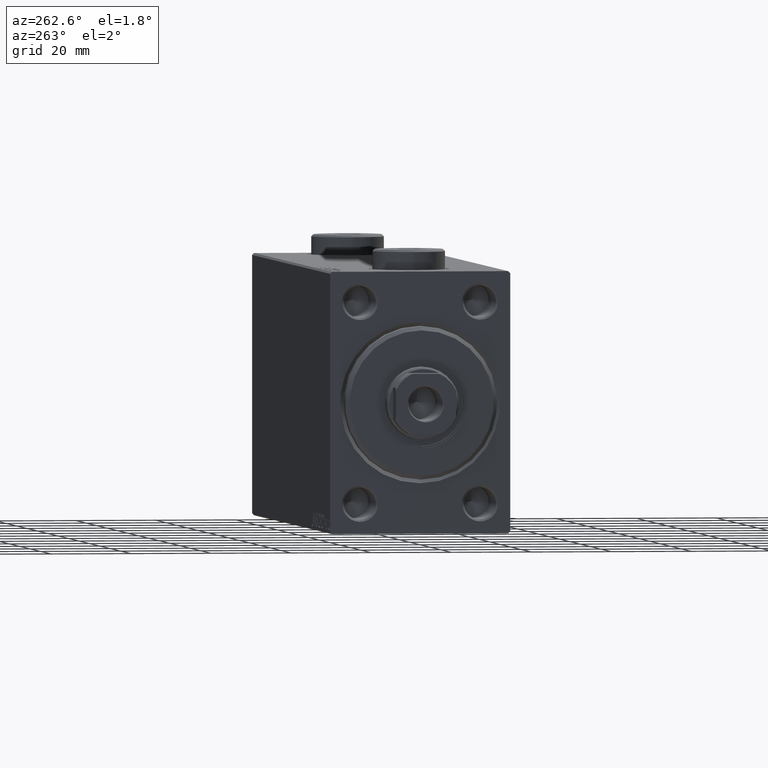
[diagram: clean part render]
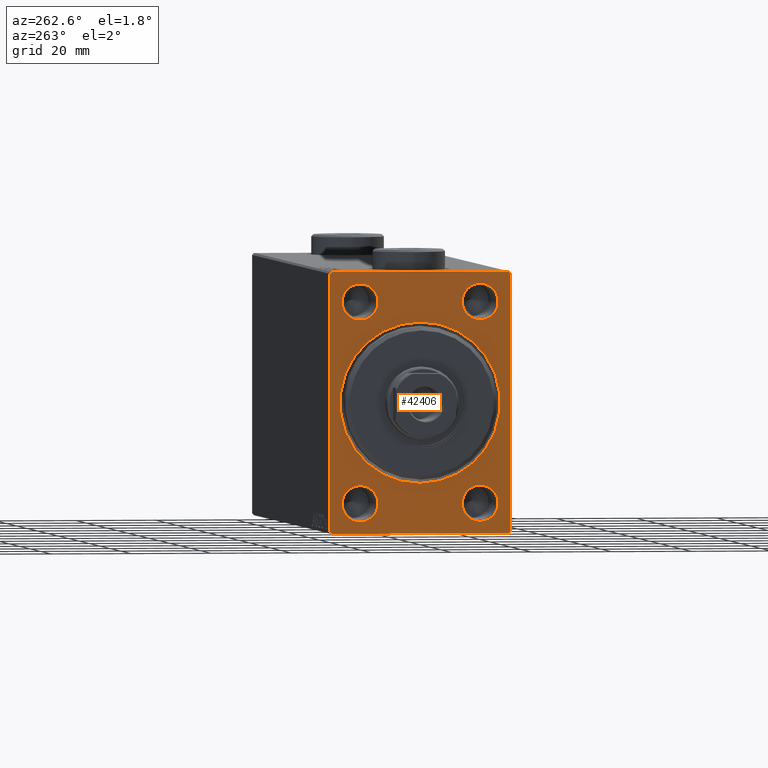
[diagram: same view with one face highlighted and labeled with its STEP entity id]
A machine part, auxiliary view. The second image highlights one B-rep face of the part: STEP entity #42406.
In plain terms, the highlighted planar face has unit normal (1, 0, 0).
Its self-contained STEP definition (entity closure, byte-faithful):
#564 = LINE ( 'NONE', #21525, #2201 ) ;
#724 = ORIENTED_EDGE ( 'NONE', *, *, #42964, .F. ) ;
#752 = CIRCLE ( 'NONE', #31677, 4.499999999999990230 ) ;
#852 = CARTESIAN_POINT ( 'NONE',  ( 0.000000000000000000, 15.00000000000000178, -20.50000000000001066 ) ) ;
#1004 = AXIS2_PLACEMENT_3D ( 'NONE', #36341, #29199, #3851 ) ;
#1363 = CARTESIAN_POINT ( 'NONE',  ( 0.000000000000000000, 15.00000000000000178, 20.50000000000001066 ) ) ;
#1569 = CARTESIAN_POINT ( 'NONE',  ( 0.000000000000000000, 15.00000000000000178, -25.00000000000000000 ) ) ;
#1570 = CIRCLE ( 'NONE', #27319, 4.499999999999990230 ) ;
#2112 = FACE_BOUND ( 'NONE', #7079, .T. ) ;
#2201 = VECTOR ( 'NONE', #7721, 1000.000000000000000 ) ;
#2381 = LINE ( 'NONE', #38084, #19921 ) ;
#2592 = DIRECTION ( 'NONE',  ( 0.000000000000000000, 0.000000000000000000, -1.000000000000000000 ) ) ;
#2710 = DIRECTION ( 'NONE',  ( 0.000000000000000000, 0.000000000000000000, -1.000000000000000000 ) ) ;
#2808 = VECTOR ( 'NONE', #32298, 1000.000000000000000 ) ;
#2852 = CARTESIAN_POINT ( 'NONE',  ( 0.000000000000000000, 22.50000000000000000, 31.99999999999999289 ) ) ;
#3045 = VERTEX_POINT ( 'NONE', #18596 ) ;
#3439 = ORIENTED_EDGE ( 'NONE', *, *, #26887, .F. ) ;
#3604 = CARTESIAN_POINT ( 'NONE',  ( 0.000000000000000000, 22.00000000000000000, 32.49999999999999289 ) ) ;
#3676 = VECTOR ( 'NONE', #20674, 1000.000000000000000 ) ;
#3779 = CARTESIAN_POINT ( 'NONE',  ( 0.000000000000000000, -15.00000000000000000, -25.00000000000000000 ) ) ;
#3851 = DIRECTION ( 'NONE',  ( 0.000000000000000000, 0.000000000000000000, -1.000000000000000000 ) ) ;
#4561 = DIRECTION ( 'NONE',  ( 1.000000000000000000, 0.000000000000000000, 0.000000000000000000 ) ) ;
#4787 = EDGE_CURVE ( 'NONE', #21800, #34271, #42221, .T. ) ;
#5147 = ORIENTED_EDGE ( 'NONE', *, *, #42067, .T. ) ;
#5176 = LINE ( 'NONE', #26611, #33801 ) ;
#5348 = CARTESIAN_POINT ( 'NONE',  ( 0.000000000000000000, 0.000000000000000000, 0.000000000000000000 ) ) ;
#5492 = EDGE_LOOP ( 'NONE', ( #40140, #26974 ) ) ;
#5968 = CIRCLE ( 'NONE', #8186, 4.499999999999990230 ) ;
#6025 = FACE_BOUND ( 'NONE', #10522, .T. ) ;
#6052 = CARTESIAN_POINT ( 'NONE',  ( 0.000000000000000000, -15.00000000000000000, 25.00000000000000000 ) ) ;
#6531 = EDGE_CURVE ( 'NONE', #3045, #17086, #5176, .T. ) ;
#6592 = AXIS2_PLACEMENT_3D ( 'NONE', #23547, #17075, #44761 ) ;
#7040 = CARTESIAN_POINT ( 'NONE',  ( 0.000000000000000000, 0.000000000000000000, 19.99999999999998934 ) ) ;
#7079 = EDGE_LOOP ( 'NONE', ( #20528, #40146 ) ) ;
#7173 = VERTEX_POINT ( 'NONE', #15597 ) ;
#7534 = VERTEX_POINT ( 'NONE', #2852 ) ;
#7721 = DIRECTION ( 'NONE',  ( 0.000000000000000000, -1.000000000000000000, -1.541976423090495633E-16 ) ) ;
#7948 = EDGE_CURVE ( 'NONE', #34841, #34517, #29429, .T. ) ;
#8122 = CIRCLE ( 'NONE', #33867, 4.499999999999990230 ) ;
#8186 = AXIS2_PLACEMENT_3D ( 'NONE', #3779, #21514, #18283 ) ;
#8277 = ORIENTED_EDGE ( 'NONE', *, *, #28002, .T. ) ;
#8706 = CARTESIAN_POINT ( 'NONE',  ( 0.000000000000000000, -21.99999999999997868, 32.49999999999998579 ) ) ;
#8848 = CARTESIAN_POINT ( 'NONE',  ( 0.000000000000000000, -21.99999999999999289, -32.50000000000000711 ) ) ;
#9323 = EDGE_CURVE ( 'NONE', #37467, #43238, #8122, .T. ) ;
#9422 = LINE ( 'NONE', #10550, #3676 ) ;
#9489 = DIRECTION ( 'NONE',  ( 0.000000000000000000, 0.000000000000000000, -1.000000000000000000 ) ) ;
#9646 = ORIENTED_EDGE ( 'NONE', *, *, #6531, .T. ) ;
#10415 = VECTOR ( 'NONE', #10932, 1000.000000000000000 ) ;
#10522 = EDGE_LOOP ( 'NONE', ( #24397, #44091 ) ) ;
#10550 = CARTESIAN_POINT ( 'NONE',  ( 0.000000000000000000, -22.49999999999999289, 32.49999999999998579 ) ) ;
#10685 = CARTESIAN_POINT ( 'NONE',  ( 0.000000000000000000, 0.000000000000000000, 0.000000000000000000 ) ) ;
#10932 = DIRECTION ( 'NONE',  ( 0.000000000000000000, -1.067522139062650425E-16, 1.000000000000000000 ) ) ;
#11456 = EDGE_CURVE ( 'NONE', #34517, #34841, #5968, .T. ) ;
#11838 = EDGE_CURVE ( 'NONE', #15157, #42181, #1570, .T. ) ;
#11860 = DIRECTION ( 'NONE',  ( -0.000000000000000000, 0.7071067811865474617, 0.7071067811865474617 ) ) ;
#11952 = VERTEX_POINT ( 'NONE', #852 ) ;
#12128 = AXIS2_PLACEMENT_3D ( 'NONE', #10685, #32122, #14799 ) ;
#12402 = EDGE_CURVE ( 'NONE', #3045, #7534, #39521, .T. ) ;
#12689 = ORIENTED_EDGE ( 'NONE', *, *, #4787, .T. ) ;
#13071 = DIRECTION ( 'NONE',  ( 1.000000000000000000, 0.000000000000000000, 0.000000000000000000 ) ) ;
#13743 = CARTESIAN_POINT ( 'NONE',  ( 0.000000000000000000, 15.00000000000000178, 25.00000000000000000 ) ) ;
#14799 = DIRECTION ( 'NONE',  ( 0.000000000000000000, 0.000000000000000000, -1.000000000000000000 ) ) ;
#15065 = CARTESIAN_POINT ( 'NONE',  ( 0.000000000000000000, -15.00000000000000000, -20.50000000000001066 ) ) ;
#15157 = VERTEX_POINT ( 'NONE', #1363 ) ;
#15520 = DIRECTION ( 'NONE',  ( 1.000000000000000000, 0.000000000000000000, 0.000000000000000000 ) ) ;
#15597 = CARTESIAN_POINT ( 'NONE',  ( 0.000000000000000000, 2.449293598294705330E-15, -19.99999999999998934 ) ) ;
#15699 = CARTESIAN_POINT ( 'NONE',  ( 0.000000000000000000, -15.00000000000000000, -29.49999999999999289 ) ) ;
#15930 = CARTESIAN_POINT ( 'NONE',  ( 0.000000000000000000, 15.00000000000000178, -29.49999999999999289 ) ) ;
#16338 = ORIENTED_EDGE ( 'NONE', *, *, #23203, .F. ) ;
#16420 = DIRECTION ( 'NONE',  ( -0.000000000000000000, 0.7071067811865474617, -0.7071067811865474617 ) ) ;
#16608 = DIRECTION ( 'NONE',  ( 1.000000000000000000, 0.000000000000000000, 0.000000000000000000 ) ) ;
#17075 = DIRECTION ( 'NONE',  ( 1.000000000000000000, 0.000000000000000000, 0.000000000000000000 ) ) ;
#17086 = VERTEX_POINT ( 'NONE', #26944 ) ;
#18283 = DIRECTION ( 'NONE',  ( 0.000000000000000000, 0.000000000000000000, -1.000000000000000000 ) ) ;
#18583 = CARTESIAN_POINT ( 'NONE',  ( 0.000000000000000000, -22.49999999999999289, -32.00000000000001421 ) ) ;
#18596 = CARTESIAN_POINT ( 'NONE',  ( 0.000000000000000000, 22.50000000000000711, -32.00000000000000711 ) ) ;
#18611 = DIRECTION ( 'NONE',  ( 0.000000000000000000, 0.000000000000000000, -1.000000000000000000 ) ) ;
#18739 = EDGE_LOOP ( 'NONE', ( #16338, #31756, #3439, #41763, #44929, #9646, #724, #12689 ) ) ;
#19393 = PLANE ( 'NONE',  #39315 ) ;
#19921 = VECTOR ( 'NONE', #16420, 1000.000000000000114 ) ;
#20066 = DIRECTION ( 'NONE',  ( 1.000000000000000000, 0.000000000000000000, 0.000000000000000000 ) ) ;
#20091 = DIRECTION ( 'NONE',  ( 1.000000000000000000, 0.000000000000000000, 0.000000000000000000 ) ) ;
#20514 = DIRECTION ( 'NONE',  ( 0.000000000000000000, 0.000000000000000000, -1.000000000000000000 ) ) ;
#20528 = ORIENTED_EDGE ( 'NONE', *, *, #11456, .T. ) ;
#20674 = DIRECTION ( 'NONE',  ( 0.000000000000000000, 0.000000000000000000, -1.000000000000000000 ) ) ;
#21070 = CARTESIAN_POINT ( 'NONE',  ( 0.000000000000000000, 22.50000000000000711, -32.50000000000000711 ) ) ;
#21514 = DIRECTION ( 'NONE',  ( 1.000000000000000000, 0.000000000000000000, 0.000000000000000000 ) ) ;
#21525 = CARTESIAN_POINT ( 'NONE',  ( 0.000000000000000000, 22.50000000000000000, 32.49999999999999289 ) ) ;
#21761 = DIRECTION ( 'NONE',  ( 1.000000000000000000, 0.000000000000000000, 0.000000000000000000 ) ) ;
#21800 = VERTEX_POINT ( 'NONE', #8848 ) ;
#22579 = EDGE_CURVE ( 'NONE', #42181, #15157, #24542, .T. ) ;
#23203 = EDGE_CURVE ( 'NONE', #24590, #34271, #9422, .T. ) ;
#23547 = CARTESIAN_POINT ( 'NONE',  ( 0.000000000000000000, -15.00000000000000000, -25.00000000000000000 ) ) ;
#23748 = EDGE_CURVE ( 'NONE', #34345, #7173, #30928, .T. ) ;
#24397 = ORIENTED_EDGE ( 'NONE', *, *, #22579, .T. ) ;
#24542 = CIRCLE ( 'NONE', #1004, 4.499999999999990230 ) ;
#24555 = AXIS2_PLACEMENT_3D ( 'NONE', #25682, #21761, #32842 ) ;
#24590 = VERTEX_POINT ( 'NONE', #39842 ) ;
#24591 = VECTOR ( 'NONE', #25931, 1000.000000000000000 ) ;
#24687 = CARTESIAN_POINT ( 'NONE',  ( 0.000000000000000000, -21.99999999999999289, -32.50000000000000711 ) ) ;
#25020 = AXIS2_PLACEMENT_3D ( 'NONE', #33065, #15520, #26154 ) ;
#25568 = ORIENTED_EDGE ( 'NONE', *, *, #44002, .T. ) ;
#25682 = CARTESIAN_POINT ( 'NONE',  ( 0.000000000000000000, 15.00000000000000178, -25.00000000000000000 ) ) ;
#25931 = DIRECTION ( 'NONE',  ( 0.000000000000000000, 1.000000000000000000, 0.000000000000000000 ) ) ;
#26154 = DIRECTION ( 'NONE',  ( 0.000000000000000000, 0.000000000000000000, -1.000000000000000000 ) ) ;
#26155 = EDGE_CURVE ( 'NONE', #41491, #7534, #2381, .T. ) ;
#26545 = FACE_OUTER_BOUND ( 'NONE', #18739, .T. ) ;
#26611 = CARTESIAN_POINT ( 'NONE',  ( 0.000000000000000000, 22.50000000000000711, -32.00000000000000711 ) ) ;
#26887 = EDGE_CURVE ( 'NONE', #41491, #36168, #564, .T. ) ;
#26944 = CARTESIAN_POINT ( 'NONE',  ( 0.000000000000000000, 21.99999999999999289, -32.50000000000000711 ) ) ;
#26974 = ORIENTED_EDGE ( 'NONE', *, *, #35620, .T. ) ;
#27319 = AXIS2_PLACEMENT_3D ( 'NONE', #13743, #13071, #2710 ) ;
#27504 = CARTESIAN_POINT ( 'NONE',  ( 0.000000000000000000, 15.00000000000000178, 29.49999999999999289 ) ) ;
#27928 = ORIENTED_EDGE ( 'NONE', *, *, #23748, .T. ) ;
#28002 = EDGE_CURVE ( 'NONE', #32640, #11952, #752, .T. ) ;
#28359 = CARTESIAN_POINT ( 'NONE',  ( 0.000000000000000000, -15.00000000000000000, 29.49999999999999289 ) ) ;
#29199 = DIRECTION ( 'NONE',  ( 1.000000000000000000, 0.000000000000000000, 0.000000000000000000 ) ) ;
#29429 = CIRCLE ( 'NONE', #6592, 4.499999999999990230 ) ;
#29839 = LINE ( 'NONE', #33068, #40082 ) ;
#29843 = DIRECTION ( 'NONE',  ( 0.000000000000000000, -0.7071067811865474617, -0.7071067811865474617 ) ) ;
#30928 = CIRCLE ( 'NONE', #25020, 19.99999999999998934 ) ;
#31150 = AXIS2_PLACEMENT_3D ( 'NONE', #37382, #16608, #20514 ) ;
#31677 = AXIS2_PLACEMENT_3D ( 'NONE', #1569, #4561, #18611 ) ;
#31756 = ORIENTED_EDGE ( 'NONE', *, *, #42912, .T. ) ;
#31883 = CARTESIAN_POINT ( 'NONE',  ( 0.000000000000000000, -15.00000000000000000, 20.50000000000001066 ) ) ;
#32122 = DIRECTION ( 'NONE',  ( 1.000000000000000000, 0.000000000000000000, 0.000000000000000000 ) ) ;
#32298 = DIRECTION ( 'NONE',  ( -0.000000000000000000, -0.7071067811865524577, 0.7071067811865426878 ) ) ;
#32319 = EDGE_LOOP ( 'NONE', ( #5147, #8277 ) ) ;
#32640 = VERTEX_POINT ( 'NONE', #15930 ) ;
#32842 = DIRECTION ( 'NONE',  ( 0.000000000000000000, 0.000000000000000000, -1.000000000000000000 ) ) ;
#33065 = CARTESIAN_POINT ( 'NONE',  ( 0.000000000000000000, 0.000000000000000000, 0.000000000000000000 ) ) ;
#33068 = CARTESIAN_POINT ( 'NONE',  ( 0.000000000000000000, -22.49999999999999289, 31.99999999999998579 ) ) ;
#33240 = FACE_BOUND ( 'NONE', #32319, .T. ) ;
#33801 = VECTOR ( 'NONE', #29843, 1000.000000000000114 ) ;
#33867 = AXIS2_PLACEMENT_3D ( 'NONE', #6052, #20091, #2592 ) ;
#34079 = CIRCLE ( 'NONE', #31150, 4.499999999999990230 ) ;
#34172 = EDGE_LOOP ( 'NONE', ( #27928, #25568 ) ) ;
#34271 = VERTEX_POINT ( 'NONE', #18583 ) ;
#34345 = VERTEX_POINT ( 'NONE', #7040 ) ;
#34517 = VERTEX_POINT ( 'NONE', #15065 ) ;
#34841 = VERTEX_POINT ( 'NONE', #15699 ) ;
#35620 = EDGE_CURVE ( 'NONE', #43238, #37467, #34079, .T. ) ;
#35682 = CIRCLE ( 'NONE', #12128, 19.99999999999998934 ) ;
#36168 = VERTEX_POINT ( 'NONE', #8706 ) ;
#36341 = CARTESIAN_POINT ( 'NONE',  ( 0.000000000000000000, 15.00000000000000178, 25.00000000000000000 ) ) ;
#36529 = LINE ( 'NONE', #39761, #24591 ) ;
#37382 = CARTESIAN_POINT ( 'NONE',  ( 0.000000000000000000, -15.00000000000000000, 25.00000000000000000 ) ) ;
#37467 = VERTEX_POINT ( 'NONE', #28359 ) ;
#37821 = CIRCLE ( 'NONE', #24555, 4.499999999999990230 ) ;
#38084 = CARTESIAN_POINT ( 'NONE',  ( 0.000000000000000000, 22.00000000000000000, 32.49999999999999289 ) ) ;
#39315 = AXIS2_PLACEMENT_3D ( 'NONE', #5348, #20066, #9489 ) ;
#39521 = LINE ( 'NONE', #21070, #10415 ) ;
#39761 = CARTESIAN_POINT ( 'NONE',  ( 0.000000000000000000, -22.49999999999999289, -32.50000000000000711 ) ) ;
#39842 = CARTESIAN_POINT ( 'NONE',  ( 0.000000000000000000, -22.49999999999999289, 31.99999999999998579 ) ) ;
#40082 = VECTOR ( 'NONE', #11860, 1000.000000000000114 ) ;
#40140 = ORIENTED_EDGE ( 'NONE', *, *, #9323, .T. ) ;
#40146 = ORIENTED_EDGE ( 'NONE', *, *, #7948, .T. ) ;
#41071 = FACE_BOUND ( 'NONE', #5492, .T. ) ;
#41491 = VERTEX_POINT ( 'NONE', #3604 ) ;
#41763 = ORIENTED_EDGE ( 'NONE', *, *, #26155, .T. ) ;
#42067 = EDGE_CURVE ( 'NONE', #11952, #32640, #37821, .T. ) ;
#42181 = VERTEX_POINT ( 'NONE', #27504 ) ;
#42221 = LINE ( 'NONE', #24687, #2808 ) ;
#42406 = ADVANCED_FACE ( 'NONE', ( #44523, #2112, #41071, #6025, #33240, #26545 ), #19393, .F. ) ;
#42912 = EDGE_CURVE ( 'NONE', #24590, #36168, #29839, .T. ) ;
#42964 = EDGE_CURVE ( 'NONE', #21800, #17086, #36529, .T. ) ;
#43238 = VERTEX_POINT ( 'NONE', #31883 ) ;
#44002 = EDGE_CURVE ( 'NONE', #7173, #34345, #35682, .T. ) ;
#44091 = ORIENTED_EDGE ( 'NONE', *, *, #11838, .T. ) ;
#44523 = FACE_BOUND ( 'NONE', #34172, .T. ) ;
#44761 = DIRECTION ( 'NONE',  ( 0.000000000000000000, 0.000000000000000000, -1.000000000000000000 ) ) ;
#44929 = ORIENTED_EDGE ( 'NONE', *, *, #12402, .F. ) ;